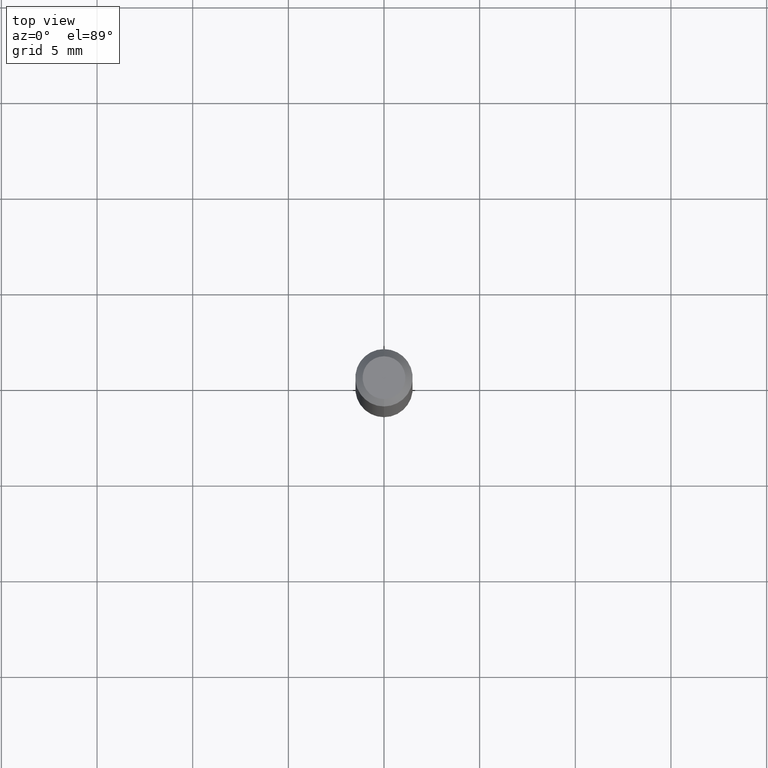
[diagram: clean part render]
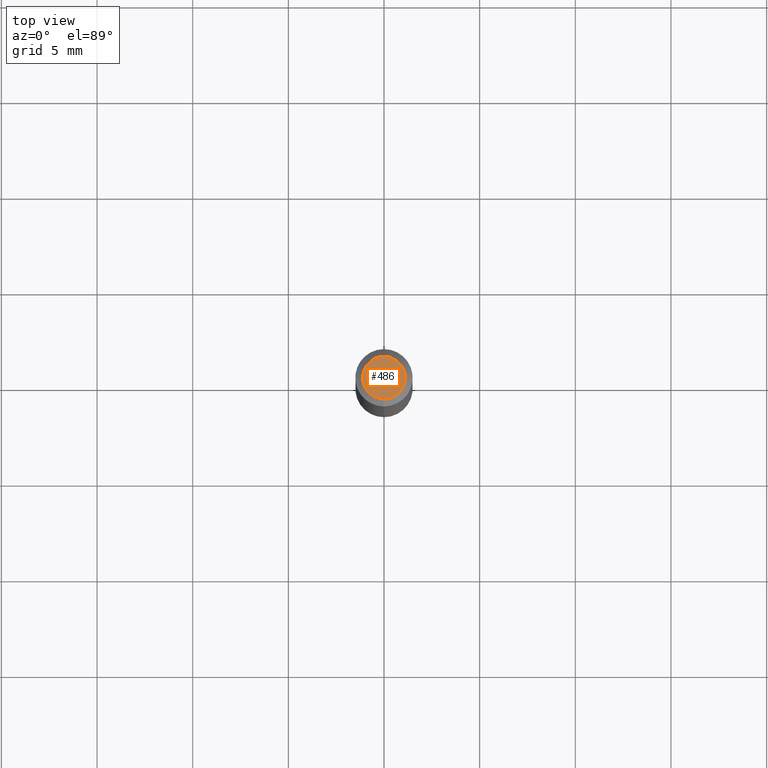
[diagram: same view with one face highlighted and labeled with its STEP entity id]
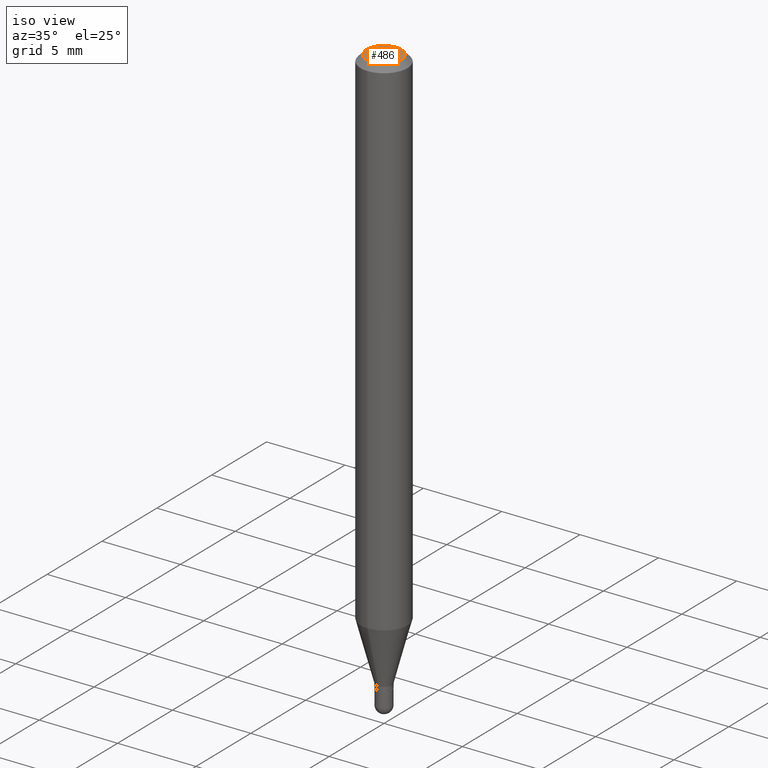
[diagram: same view with one face highlighted and labeled with its STEP entity id]
A machine part, top view. The second image highlights one B-rep face of the part: STEP entity #486.
A second angle (iso view) of the same face is appended — the face is thin or edge-on in the first view.
In plain terms, the highlighted planar face has unit normal (0, -0, -1).
Its self-contained STEP definition (entity closure, byte-faithful):
#73 = AXIS2_PLACEMENT_3D ( 'NONE', #279, #245, #393 ) ;
#82 = CIRCLE ( 'NONE', #73, 0.04404999999999999888 ) ;
#83 = CARTESIAN_POINT ( 'NONE',  ( 1.071015214505298298E-45, -1.529181348837453317E-31, -4.379669896630447152E-17 ) ) ;
#89 = DIRECTION ( 'NONE',  ( -2.445424517791391179E-29, 3.491544762343727703E-15, 1.000000000000000000 ) ) ;
#92 = DIRECTION ( 'NONE',  ( 2.445424517791390619E-29, -3.491544762343728097E-15, -1.000000000000000000 ) ) ;
#125 = CARTESIAN_POINT ( 'NONE',  ( 3.075995059520799729E-16, 0.04404999999999999888, -1.757008962643934197E-16 ) ) ;
#129 = DIRECTION ( 'NONE',  ( 6.982962677686265922E-15, 1.000000000000000000, -3.491544762343728097E-15 ) ) ;
#137 = CIRCLE ( 'NONE', #423, 0.04404999999999999888 ) ;
#145 = AXIS2_PLACEMENT_3D ( 'NONE', #125, #92, #129 ) ;
#148 = ORIENTED_EDGE ( 'NONE', *, *, #363, .T. ) ;
#213 = FACE_OUTER_BOUND ( 'NONE', #376, .T. ) ;
#242 = DIRECTION ( 'NONE',  ( -6.982962677686265133E-15, -1.000000000000000000, 3.491544762343727308E-15 ) ) ;
#245 = DIRECTION ( 'NONE',  ( -2.445424517791391179E-29, 3.491544762343727703E-15, 1.000000000000000000 ) ) ;
#263 = CARTESIAN_POINT ( 'NONE',  ( 3.599717260347271507E-16, 0.04404999999999999888, -1.975992457475456801E-16 ) ) ;
#279 = CARTESIAN_POINT ( 'NONE',  ( 1.071015214505298298E-45, -1.529181348837453317E-31, -4.379669896630447152E-17 ) ) ;
#297 = ORIENTED_EDGE ( 'NONE', *, *, #320, .T. ) ;
#320 = EDGE_CURVE ( 'NONE', #467, #339, #82, .T. ) ;
#339 = VERTEX_POINT ( 'NONE', #390 ) ;
#363 = EDGE_CURVE ( 'NONE', #339, #467, #137, .T. ) ;
#376 = EDGE_LOOP ( 'NONE', ( #297, #148 ) ) ;
#390 = CARTESIAN_POINT ( 'NONE',  ( -3.536586717851222218E-16, -0.04404999999999999888, 1.100058478149367124E-16 ) ) ;
#393 = DIRECTION ( 'NONE',  ( -6.982962677686265133E-15, -1.000000000000000000, 3.491544762343727308E-15 ) ) ;
#423 = AXIS2_PLACEMENT_3D ( 'NONE', #83, #89, #242 ) ;
#437 = PLANE ( 'NONE',  #145 ) ;
#467 = VERTEX_POINT ( 'NONE', #263 ) ;
#486 = ADVANCED_FACE ( 'NONE', ( #213 ), #437, .F. ) ;